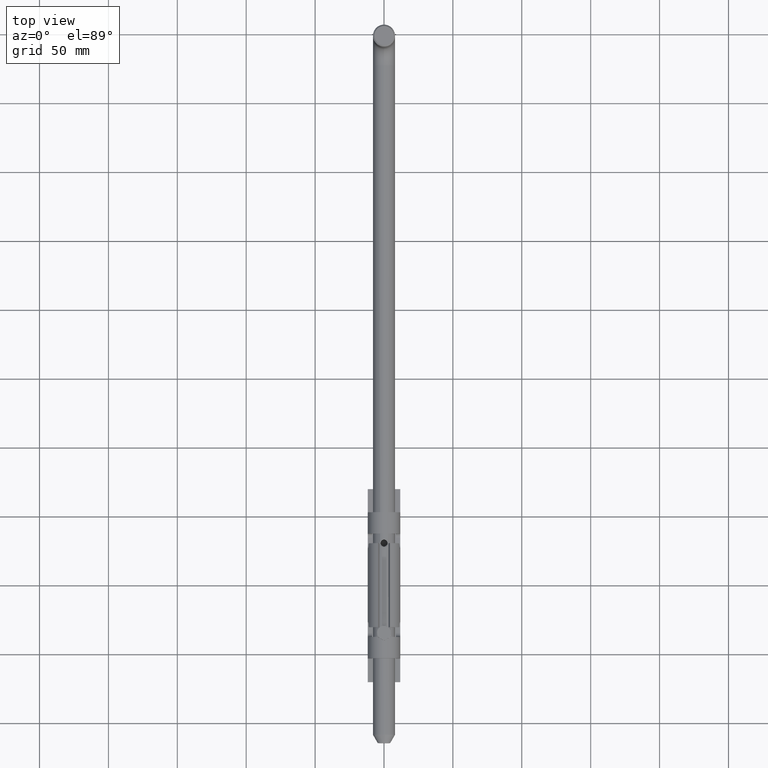
[diagram: clean part render]
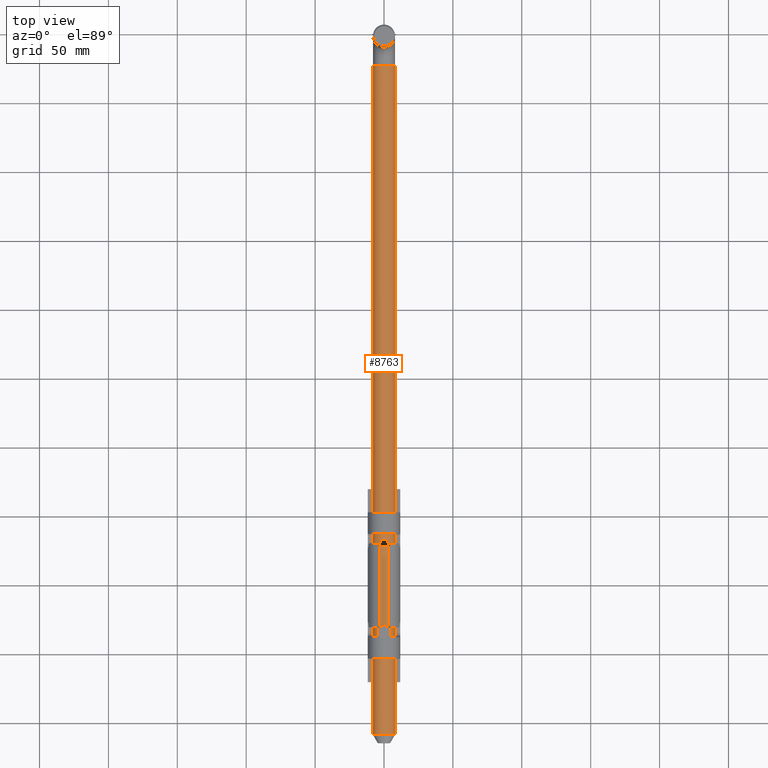
[diagram: same view with one face highlighted and labeled with its STEP entity id]
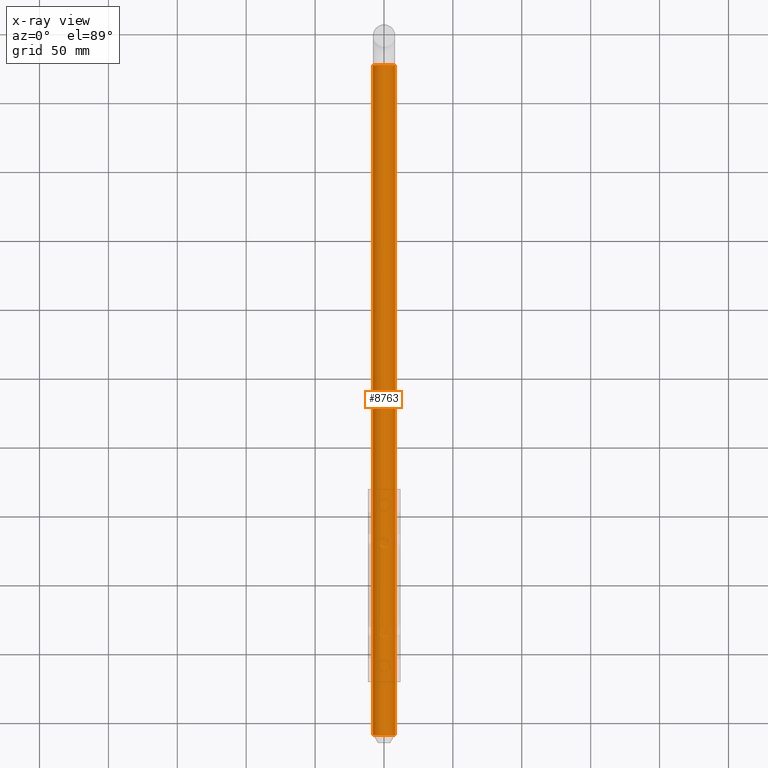
[diagram: x-ray of the same camera — body ghosted, the highlighted face saturated]
A machine part, top view. The second image highlights one B-rep face of the part: STEP entity #8763.
The next image is the same camera in x-ray: the body ghosted, the highlighted face saturated — about 0% of this face is hidden behind the body in this view.
In plain terms, the highlighted cylindrical surface (bore or boss wall) has radius 8 mm, axis along (0, 1, 0).
Its self-contained STEP definition (entity closure, byte-faithful):
#45 = CARTESIAN_POINT ( 'NONE',  ( 2.579731946667770615, 146.4487628875441203, 7.574308566198801884 ) ) ;
#48 = CARTESIAN_POINT ( 'NONE',  ( -2.860663060771149180, 80.74691612142908070, 7.471162677819355835 ) ) ;
#102 = CARTESIAN_POINT ( 'NONE',  ( 1.645595979026823974, 142.6200995483506233, 7.828921629050245024 ) ) ;
#106 = CARTESIAN_POINT ( 'NONE',  ( -0.09811955437530991975, 82.86324151486894607, 7.999435082093174998 ) ) ;
#164 = CARTESIAN_POINT ( 'NONE',  ( 2.729122876670807774, 143.8985876729329334, 7.520098957063800604 ) ) ;
#165 = CARTESIAN_POINT ( 'NONE',  ( -0.04957969960060630565, 82.86441596757860850, 7.999883182457191211 ) ) ;
#218 = CARTESIAN_POINT ( 'NONE',  ( 2.899062179789276605, 79.43872006947486852, 7.456234872756856369 ) ) ;
#271 = CARTESIAN_POINT ( 'NONE',  ( 0.4850676974145280984, 82.82749844496261460, 7.985864211049978678 ) ) ;
#335 = CARTESIAN_POINT ( 'NONE',  ( 2.956285570585469813, 80.19117064627518232, 7.433732281420296850 ) ) ;
#397 = CARTESIAN_POINT ( 'NONE',  ( 0.5810474846536937132, 77.19115270818728902, 7.978871086850420902 ) ) ;
#999 = CARTESIAN_POINT ( 'NONE',  ( -2.766018306126067028, 143.9843344430361185, 7.506711594330875315 ) ) ;
#1060 = CARTESIAN_POINT ( 'NONE',  ( -0.1223748728809830044, 147.8623648255054093, 7.999100708927392667 ) ) ;
#1117 = CARTESIAN_POINT ( 'NONE',  ( -1.820725851897174730, 142.7127060578982025, 7.795104764749101633 ) ) ;
#1179 = CARTESIAN_POINT ( 'NONE',  ( -0.4860229615115107538, 147.8273388792882486, 7.985802670577033524 ) ) ;
#1182 = CARTESIAN_POINT ( 'NONE',  ( -2.879684493372818732, 79.34498801449191774, 7.463768271074192384 ) ) ;
#1241 = CARTESIAN_POINT ( 'NONE',  ( -2.936724187545915576, 145.3792127852903207, 7.441593643298839211 ) ) ;
#1301 = CARTESIAN_POINT ( 'NONE',  ( -2.226895601848499329, 78.10666596831487141, 7.685090188721413362 ) ) ;
#1362 = CARTESIAN_POINT ( 'NONE',  ( 0.9573857739252036314, 147.7168165722684705, 7.944555705606221707 ) ) ;
#1425 = CARTESIAN_POINT ( 'NONE',  ( 2.728858957844051858, 146.1020261514495360, 7.520194730736317723 ) ) ;
#1486 = CARTESIAN_POINT ( 'NONE',  ( 0.5810474846536016758, 142.1911527081871895, 7.978871086850428007 ) ) ;
#1488 = CARTESIAN_POINT ( 'NONE',  ( 2.936346539791882204, 80.38182445177299940, 7.441743173537931355 ) ) ;
#1540 = CARTESIAN_POINT ( 'NONE',  ( 2.579843431047903479, 143.5512575132219411, 7.574274035396183713 ) ) ;
#1543 = CARTESIAN_POINT ( 'NONE',  ( 2.091119801620489493, 77.97497177721595563, 7.721866223606226320 ) ) ;
#1599 = CARTESIAN_POINT ( 'NONE',  ( -0.1950940110562549568, 82.85886636824241691, 7.997767774269979313 ) ) ;
#1658 = CARTESIAN_POINT ( 'NONE',  ( 0.04767639700330551095, 82.86444706501262658, 7.999894902909037597 ) ) ;
#1713 = CARTESIAN_POINT ( 'NONE',  ( 2.932450101916341367, 79.62428636702708218, 7.443174237899068402 ) ) ;
#1890 = CARTESIAN_POINT ( 'NONE',  ( -1.959434878635765131E-15, 77.13527780588972860, 8.000000000000000000 ) ) ;
#1943 = CARTESIAN_POINT ( 'NONE',  ( 1.316320254724494987, 77.42810719143598419, 7.893014070342060151 ) ) ;
#1945 = VERTEX_POINT ( 'NONE', #4917 ) ;
#2078 = EDGE_LOOP ( 'NONE', ( #9205 ) ) ;
#2180 = CARTESIAN_POINT ( 'NONE',  ( -1.959434878635765131E-15, 142.1352778058896718, 8.000000000000000000 ) ) ;
#2367 = CARTESIAN_POINT ( 'NONE',  ( -0.5820103971712080604, 147.8086600977559328, 7.978800905999885451 ) ) ;
#2426 = CARTESIAN_POINT ( 'NONE',  ( -0.09811955378544494344, 147.8632415148881023, 7.999435082100085914 ) ) ;
#2490 = CARTESIAN_POINT ( 'NONE',  ( -2.089916647959525697, 147.0261941483638566, 7.722191943003076098 ) ) ;
#2549 = CARTESIAN_POINT ( 'NONE',  ( 0.02212796934447593469, 147.8647299307403387, 8.000002819897066075 ) ) ;
#2602 = CARTESIAN_POINT ( 'NONE',  ( -0.5807929428112137415, 142.1911032768326493, 7.978889619338063177 ) ) ;
#2663 = CARTESIAN_POINT ( 'NONE',  ( 0.3874701286301368008, 147.8415812218673864, 7.991200090878218809 ) ) ;
#2666 = CARTESIAN_POINT ( 'NONE',  ( -1.807998787364401228, 82.27432787524483615, 7.794755511196370001 ) ) ;
#2782 = CARTESIAN_POINT ( 'NONE',  ( 2.879957927047264388, 144.3460586839861435, 7.463662806230339619 ) ) ;
#2785 = CARTESIAN_POINT ( 'NONE',  ( -2.898776271949216277, 79.43733520206396292, 7.456346030408205650 ) ) ;
#2845 = CARTESIAN_POINT ( 'NONE',  ( 0.1206234020291120229, 82.86243495075370902, 7.999127477920611184 ) ) ;
#2904 = CARTESIAN_POINT ( 'NONE',  ( 0.2905186933468555943, 147.8508566049731598, 7.994723190255935030 ) ) ;
#2906 = CARTESIAN_POINT ( 'NONE',  ( -0.2435110025524352129, 82.85537621129596175, 7.996439389232910422 ) ) ;
#2962 = CARTESIAN_POINT ( 'NONE',  ( 0.1935066965011738305, 82.85896859441521656, 7.997807000107952646 ) ) ;
#3017 = CARTESIAN_POINT ( 'NONE',  ( -0.9589318496046950191, 82.71628174820232005, 7.944358389409595489 ) ) ;
#3077 = CARTESIAN_POINT ( 'NONE',  ( 2.856055941613035554, 79.25403795121914641, 7.472876457236602654 ) ) ;
#3246 = CARTESIAN_POINT ( 'NONE',  ( 0.1960556857511699669, 77.13527680465706737, 8.000000000000000000 ) ) ;
#3790 = CARTESIAN_POINT ( 'NONE',  ( -0.04957969922522590528, 147.8644159675908725, 7.999883182459193165 ) ) ;
#3826 = FACE_BOUND ( 'NONE', #2078, .T. ) ;
#3849 = CARTESIAN_POINT ( 'NONE',  ( -2.349195199764496866, 143.2508027592531050, 7.648137152867542810 ) ) ;
#3908 = CARTESIAN_POINT ( 'NONE',  ( 0.04767639688067770720, 147.8644470650127687, 7.999894902909659322 ) ) ;
#3910 = CARTESIAN_POINT ( 'NONE',  ( -2.936959829102010922, 79.62202957720806751, 7.441501549076231292 ) ) ;
#3969 = CARTESIAN_POINT ( 'NONE',  ( -0.3899897201449729622, 142.1540618930754647, 7.992778414706481982 ) ) ;
#3972 = CARTESIAN_POINT ( 'NONE',  ( -0.7715961662913263241, 77.22814466077539919, 7.965000823910401984 ) ) ;
#4031 = CARTESIAN_POINT ( 'NONE',  ( 0.7738894093764860926, 147.7713735124096388, 7.964820566472353036 ) ) ;
#4034 = CARTESIAN_POINT ( 'NONE',  ( -0.9606626916078512268, 77.28431504790805207, 7.944143457926997165 ) ) ;
#4055 = FACE_BOUND ( 'NONE', #10458, .T. ) ;
#4087 = CARTESIAN_POINT ( 'NONE',  ( 2.856055941644598750, 144.2540379513867208, 7.472876457224677083 ) ) ;
#4100 = DIRECTION ( 'NONE',  ( 0.000000000000000000, 1.000000000000000000, 0.000000000000000000 ) ) ;
#4144 = CARTESIAN_POINT ( 'NONE',  ( 0.1935066962867307006, 147.8589685944153302, 7.997807000113136056 ) ) ;
#4147 = CARTESIAN_POINT ( 'NONE',  ( -2.349042890389418492, 81.74930753427450725, 7.648177558982946600 ) ) ;
#4206 = CARTESIAN_POINT ( 'NONE',  ( 1.954411451049205439, 147.1574661182276600, 7.758871341774501218 ) ) ;
#4208 = CARTESIAN_POINT ( 'NONE',  ( 1.314577624735941752, 82.57277330475093891, 7.893316067935380431 ) ) ;
#4268 = CARTESIAN_POINT ( 'NONE',  ( 2.860111142010328678, 80.74878847283237349, 7.471374486531547454 ) ) ;
#4321 = CARTESIAN_POINT ( 'NONE',  ( 2.090265437473426857, 82.02585627571323812, 7.722097538940053241 ) ) ;
#4330 = ORIENTED_EDGE ( 'NONE', *, *, #9630, .F. ) ;
#4381 = CARTESIAN_POINT ( 'NONE',  ( 1.806990639484525207, 82.27502631626109064, 7.794975902338183715 ) ) ;
#4437 = CARTESIAN_POINT ( 'NONE',  ( 0.1449178335197992828, 82.86127949864086872, 7.998687318649725597 ) ) ;
#4495 = CARTESIAN_POINT ( 'NONE',  ( 1.049190312648953682, 77.32011786990175040, 7.931411741912502755 ) ) ;
#4917 = CARTESIAN_POINT ( 'NONE',  ( 0.000000000000000000, 6.000000000000005329, -8.000000000000000000 ) ) ;
#5041 = CARTESIAN_POINT ( 'NONE',  ( -1.494242319986221368, 142.5000632854365676, 7.867426023665286650 ) ) ;
#5099 = CARTESIAN_POINT ( 'NONE',  ( -0.3885509646720398114, 147.8414321840737955, 7.991144486503629629 ) ) ;
#5161 = CARTESIAN_POINT ( 'NONE',  ( -0.02412202006160628007, 147.8647141316588716, 7.999997055845486038 ) ) ;
#5222 = CARTESIAN_POINT ( 'NONE',  ( -2.226895601782881595, 143.1066659682379623, 7.685090188739184036 ) ) ;
#5279 = CARTESIAN_POINT ( 'NONE',  ( -2.898776271949321970, 144.4373352020639345, 7.456346030408163905 ) ) ;
#5281 = CARTESIAN_POINT ( 'NONE',  ( -2.728896607379092565, 81.10193863430455963, 7.520181068713363892 ) ) ;
#5342 = CARTESIAN_POINT ( 'NONE',  ( 0.8630930836904846526, 142.2600785485929293, 7.953305622751186910 ) ) ;
#5461 = CARTESIAN_POINT ( 'NONE',  ( 0.6762152895658968266, 142.2096395668948787, 7.971940656083670085 ) ) ;
#5523 = CARTESIAN_POINT ( 'NONE',  ( 1.805837521681020075, 142.7241409155415113, 7.795239744014337724 ) ) ;
#5526 = CARTESIAN_POINT ( 'NONE',  ( -1.820725851765711889, 77.71270605774449791, 7.795104764784706930 ) ) ;
#5582 = CARTESIAN_POINT ( 'NONE',  ( 2.090265437472246912, 147.0258562757142897, 7.722097538940372097 ) ) ;
#5586 = CARTESIAN_POINT ( 'NONE',  ( 2.956399506794769039, 79.90529108742954634, 7.433686969323779259 ) ) ;
#5642 = CARTESIAN_POINT ( 'NONE',  ( -0.1466145860350495655, 82.86119867307048992, 7.998656397368358206 ) ) ;
#5698 = CARTESIAN_POINT ( 'NONE',  ( 1.646596097010512905, 82.37925082413774192, 7.828711343082573215 ) ) ;
#5755 = CARTESIAN_POINT ( 'NONE',  ( -0.1223748735244468838, 82.86236482548451932, 7.999100708917548097 ) ) ;
#5789 = AXIS2_PLACEMENT_3D ( 'NONE', #6865, #4100, #10904 ) ;
#5813 = CARTESIAN_POINT ( 'NONE',  ( -0.4860229622117281933, 82.82733887916555204, 7.985802670525957936 ) ) ;
#5988 = CARTESIAN_POINT ( 'NONE',  ( 0.8630930836913182080, 77.26007854859321355, 7.953305622751098092 ) ) ;
#6396 = CYLINDRICAL_SURFACE ( 'NONE', #5789, 8.000000000000000000 ) ;
#6423 = CARTESIAN_POINT ( 'NONE',  ( -2.855707877844880116, 144.2527924565567048, 7.473009400550298054 ) ) ;
#6482 = CARTESIAN_POINT ( 'NONE',  ( -2.827072700079086065, 144.1620876108663083, 7.483826557882507835 ) ) ;
#6541 = CARTESIAN_POINT ( 'NONE',  ( -2.956361118489615247, 144.9982315451693751, 7.433702236240218753 ) ) ;
#6605 = CARTESIAN_POINT ( 'NONE',  ( -2.728697388001241730, 143.8975982344948079, 7.520253357747676226 ) ) ;
#6663 = CARTESIAN_POINT ( 'NONE',  ( -2.349042890496222835, 146.7493075342025861, 7.648177558948495935 ) ) ;
#6666 = CARTESIAN_POINT ( 'NONE',  ( -2.654604071275526778, 81.27469633336991706, 7.547140080454459721 ) ) ;
#6728 = CARTESIAN_POINT ( 'NONE',  ( 0.1960556860339393304, 142.1352768046567121, 8.000000000000000000 ) ) ;
#6731 = CARTESIAN_POINT ( 'NONE',  ( -2.349195199606536999, 78.25080275899732385, 7.648137152918506487 ) ) ;
#6791 = CARTESIAN_POINT ( 'NONE',  ( 1.955601196518119034, 142.8435676479837184, 7.758565336283327341 ) ) ;
#6794 = CARTESIAN_POINT ( 'NONE',  ( -2.956204773416791109, 79.80908794378682103, 7.433764414207492344 ) ) ;
#6850 = CARTESIAN_POINT ( 'NONE',  ( 0.1449178333062877966, 147.8612794986409824, 7.998687318653593614 ) ) ;
#6865 = CARTESIAN_POINT ( 'NONE',  ( 0.000000000000000000, 0.000000000000000000, 0.000000000000000000 ) ) ;
#6903 = CARTESIAN_POINT ( 'NONE',  ( 2.766442738076533736, 143.9854202128606460, 7.506555187480705271 ) ) ;
#6905 = CARTESIAN_POINT ( 'NONE',  ( -2.091505685154237071, 77.97534599812475165, 7.721761714075844552 ) ) ;
#6968 = CARTESIAN_POINT ( 'NONE',  ( 2.827404402635294023, 144.1631391955810102, 7.483701246305771271 ) ) ;
#6970 = CARTESIAN_POINT ( 'NONE',  ( 2.766442738045807204, 78.98542021283087422, 7.506555187491856351 ) ) ;
#7028 = CARTESIAN_POINT ( 'NONE',  ( -0.02412199700027135851, 82.86471413166010791, 7.999997055848362848 ) ) ;
#7083 = CARTESIAN_POINT ( 'NONE',  ( -1.315169873409018919, 82.57244529255812893, 7.893206491385246437 ) ) ;
#7143 = CARTESIAN_POINT ( 'NONE',  ( 2.579731946345301896, 81.44876288802140607, 7.574308566315801627 ) ) ;
#7200 = CARTESIAN_POINT ( 'NONE',  ( 0.07199611154085100440, 82.86387330973161625, 7.999676028435338537 ) ) ;
#7803 = CARTESIAN_POINT ( 'NONE',  ( -2.728896607379186268, 146.1019386343046165, 7.520181068713330141 ) ) ;
#7864 = CARTESIAN_POINT ( 'NONE',  ( -1.485969992628461744, 147.4836690710341713, 7.862503817192886046 ) ) ;
#7927 = CARTESIAN_POINT ( 'NONE',  ( -0.9606626916096823177, 142.2843150478814778, 7.944143457926735152 ) ) ;
#7986 = CARTESIAN_POINT ( 'NONE',  ( -1.646984389888789702, 147.3789984732233336, 7.828629664217273465 ) ) ;
#8013 = EDGE_LOOP ( 'NONE', ( #13901 ) ) ;
#8049 = CARTESIAN_POINT ( 'NONE',  ( -2.563863612939420999, 143.5614657241548571, 7.578873489504532657 ) ) ;
#8109 = CARTESIAN_POINT ( 'NONE',  ( 2.898228840901290848, 145.5653064623023170, 7.456558830034667018 ) ) ;
#8112 = CARTESIAN_POINT ( 'NONE',  ( -1.959434878635765131E-15, 77.13527780588972860, 8.000000000000000000 ) ) ;
#8165 = CARTESIAN_POINT ( 'NONE',  ( 2.936346539761735208, 145.3818244519265761, 7.441743173549648205 ) ) ;
#8168 = CARTESIAN_POINT ( 'NONE',  ( -2.455967399233760950, 81.59467877881375841, 7.613686632236774443 ) ) ;
#8231 = CARTESIAN_POINT ( 'NONE',  ( 1.646596097011423954, 147.3792508241371593, 7.828711343082382257 ) ) ;
#8234 = CARTESIAN_POINT ( 'NONE',  ( -2.956517463562215120, 80.18737514655185805, 7.433640058273034867 ) ) ;
#8290 = CARTESIAN_POINT ( 'NONE',  ( 1.806990639281948585, 147.2750263164210764, 7.794975902380771871 ) ) ;
#8292 = CARTESIAN_POINT ( 'NONE',  ( 0.09631582607839649091, 82.86329955445060591, 7.999457153961638589 ) ) ;
#8349 = CARTESIAN_POINT ( 'NONE',  ( 2.956399506794951559, 144.9052910874462725, 7.433686969323707316 ) ) ;
#8351 = CARTESIAN_POINT ( 'NONE',  ( 2.579843431169672296, 78.55125751334040274, 7.574274035351987067 ) ) ;
#8403 = CARTESIAN_POINT ( 'NONE',  ( 0.7738894082702633126, 82.77137351257037778, 7.964820566552821113 ) ) ;
#8426 = DIRECTION ( 'NONE',  ( 0.000000000000000000, 0.000000000000000000, -1.000000000000000000 ) ) ;
#8458 = CARTESIAN_POINT ( 'NONE',  ( -0.2918576563064751439, 82.85072820223111023, 7.994674421666918995 ) ) ;
#8512 = CARTESIAN_POINT ( 'NONE',  ( 2.898228840901105219, 80.56530646230268644, 7.456558830034738961 ) ) ;
#8699 = CARTESIAN_POINT ( 'NONE',  ( 0.9564280977369364889, 77.28768685068725119, 7.943176902831349473 ) ) ;
#8763 = ADVANCED_FACE ( 'NONE', ( #4055, #3826, #16706, #16069 ), #6396, .T. ) ;
#8800 = DIRECTION ( 'NONE',  ( 0.000000000000000000, 0.000000000000000000, 1.000000000000000000 ) ) ;
#9191 = CARTESIAN_POINT ( 'NONE',  ( -2.455967399233855541, 146.5946787788138295, 7.613686632236744245 ) ) ;
#9205 = ORIENTED_EDGE ( 'NONE', *, *, #16695, .T. ) ;
#9247 = CARTESIAN_POINT ( 'NONE',  ( -2.091505685154312566, 142.9753459981247090, 7.721761714075823235 ) ) ;
#9312 = CARTESIAN_POINT ( 'NONE',  ( -2.936959829085268758, 144.6220295770444011, 7.441501549082738087 ) ) ;
#9372 = CARTESIAN_POINT ( 'NONE',  ( -0.9589318503797522597, 147.7162817479169519, 7.944358389298305845 ) ) ;
#9375 = CARTESIAN_POINT ( 'NONE',  ( -2.798437522271544076, 79.07138276501650864, 7.494643715230488112 ) ) ;
#9429 = CARTESIAN_POINT ( 'NONE',  ( -2.956517463562604586, 145.1873751468813509, 7.433640058272879436 ) ) ;
#9430 = CARTESIAN_POINT ( 'NONE',  ( -1.954742100462597998, 82.15711088065556567, 7.758775278315038548 ) ) ;
#9443 = VERTEX_POINT ( 'NONE', #15904 ) ;
#9491 = CARTESIAN_POINT ( 'NONE',  ( 2.899062179789396065, 144.4387200694748117, 7.456234872756809295 ) ) ;
#9493 = CARTESIAN_POINT ( 'NONE',  ( -2.654055551652477973, 78.72412581715445867, 7.547336884617238617 ) ) ;
#9549 = CARTESIAN_POINT ( 'NONE',  ( 0.09631582588362348762, 147.8632995544507480, 7.999457153963875911 ) ) ;
#9610 = CARTESIAN_POINT ( 'NONE',  ( 1.486201554740899322, 147.4834753318532421, 7.862446783783992643 ) ) ;
#9613 = CARTESIAN_POINT ( 'NONE',  ( -0.1956738863669538475, 77.13527880517260371, 8.000000000000000000 ) ) ;
#9630 = EDGE_CURVE ( 'NONE', #10302, #10302, #13259, .T. ) ;
#9667 = CARTESIAN_POINT ( 'NONE',  ( 0.9564280968306031472, 142.2876868504053505, 7.943176902929713457 ) ) ;
#9670 = CARTESIAN_POINT ( 'NONE',  ( 0.3874701283502260951, 82.84158122186724427, 7.991200090888356478 ) ) ;
#9727 = CARTESIAN_POINT ( 'NONE',  ( 1.314577624221257901, 147.5727733049857022, 7.893316068009157860 ) ) ;
#9730 = CARTESIAN_POINT ( 'NONE',  ( 2.362157011271429408, 78.23778003508860479, 7.648467998402014523 ) ) ;
#9787 = CARTESIAN_POINT ( 'NONE',  ( -0.5820103971711797497, 82.80866009775583336, 7.978800905999889004 ) ) ;
#9845 = CARTESIAN_POINT ( 'NONE',  ( -1.646984389888727307, 82.37899847322324831, 7.828629664217285899 ) ) ;
#9902 = CARTESIAN_POINT ( 'NONE',  ( 2.951628703255982700, 79.81242881341734119, 7.435589709906603062 ) ) ;
#9991 = CARTESIAN_POINT ( 'NONE',  ( 0.000000000000000000, 6.000000000000005329, 0.000000000000000000 ) ) ;
#10023 = CARTESIAN_POINT ( 'NONE',  ( 1.485354436376779885, 77.51605818119006130, 7.862603514085279244 ) ) ;
#10081 = CARTESIAN_POINT ( 'NONE',  ( 0.7697580696456999272, 77.23247024649916170, 7.963434342670846711 ) ) ;
#10302 = VERTEX_POINT ( 'NONE', #17155 ) ;
#10458 = EDGE_LOOP ( 'NONE', ( #15267 ) ) ;
#10576 = CARTESIAN_POINT ( 'NONE',  ( -0.7739852684906025626, 147.7713025346912445, 7.964797376845590193 ) ) ;
#10636 = CARTESIAN_POINT ( 'NONE',  ( -2.225091195949306488, 146.8952774157039869, 7.685608607557727900 ) ) ;
#10702 = CARTESIAN_POINT ( 'NONE',  ( -2.654604071225918460, 146.2746963335430621, 7.547140080472463097 ) ) ;
#10728 = VERTEX_POINT ( 'NONE', #2180 ) ;
#10758 = CARTESIAN_POINT ( 'NONE',  ( -0.0009970253585651733374, 147.8647220311995909, 7.999999937871276501 ) ) ;
#10824 = CARTESIAN_POINT ( 'NONE',  ( -1.807998787149117437, 147.2743278754124958, 7.794755511241661772 ) ) ;
#10887 = CARTESIAN_POINT ( 'NONE',  ( 2.091119801620914487, 142.9749717772162683, 7.721866223606111745 ) ) ;
#10890 = CARTESIAN_POINT ( 'NONE',  ( -2.728697388001134705, 78.89759823449482212, 7.520253357747715306 ) ) ;
#10904 = DIRECTION ( 'NONE',  ( 0.000000000000000000, 0.000000000000000000, 1.000000000000000000 ) ) ;
#10943 = CARTESIAN_POINT ( 'NONE',  ( 2.956285570585440947, 145.1911706462413179, 7.433732281420308396 ) ) ;
#11004 = CARTESIAN_POINT ( 'NONE',  ( 2.860111142040846932, 145.7487884726780578, 7.471374486519685831 ) ) ;
#11064 = CARTESIAN_POINT ( 'NONE',  ( -1.959434878635765131E-15, 142.1352778058896718, 8.000000000000000000 ) ) ;
#11067 = CARTESIAN_POINT ( 'NONE',  ( -0.3885509638145548950, 82.84143218410140719, 7.991144486534932589 ) ) ;
#11122 = CARTESIAN_POINT ( 'NONE',  ( 2.362157011826505393, 143.2377800356813680, 7.648467998251681443 ) ) ;
#11124 = CARTESIAN_POINT ( 'NONE',  ( -1.137050861506856858, 82.64436352038022449, 7.918782440397420963 ) ) ;
#11145 = B_SPLINE_CURVE_WITH_KNOTS ( 'NONE', 3,
 ( #8112, #9613, #13752, #14901, #3972, #4034, #16452, #12252, #5526, #6905, #1301, #6731, #16513, #17584, #9493, #10890, #17709, #9375, #13640, #13573, #1182, #2785, #3910, #6794, #15022, #8234, #13513, #14960, #48, #16396, #5281, #6666, #12375, #8168, #4147, #16271, #16332, #9430, #2666, #9845, #13930, #7083, #11124, #3017, #14036, #9787, #5813, #11067, #8458, #2906, #1599, #5642, #5755, #106, #15428, #165, #7028, #11180, #13979, #1658, #7200, #8292, #2845, #4437, #2962, #12434, #12602, #9670, #271, #12488, #8403, #16682, #12542, #4208, #11238, #5698, #4381, #16627, #4321, #15371, #7143, #15310, #16738, #4268, #8512, #1488, #335, #13813, #5586, #9902, #13870, #1713, #15258, #218, #11294, #3077, #12662, #15203, #6970, #16571, #8351, #9730, #1543, #11471, #11580, #16971, #10023, #1943, #12718, #4495, #8699, #5988, #10081, #15605, #397, #15483, #3246, #1890 ),
 .UNSPECIFIED., .T., .F.,
 ( 4, 3, 3, 3, 3, 3, 3, 3, 3, 3, 3, 3, 3, 3, 3, 3, 3, 3, 3, 3, 3, 3, 3, 3, 3, 3, 3, 3, 3, 3, 3, 3, 3, 3, 3, 3, 3, 3, 3, 4 ),
 ( 0.000000000000000000, 0.02564102564102564014, 0.05128205128205128027, 0.07692307692307692735, 0.1025641025641025605, 0.1282051282051281937, 0.1538461538461538547, 0.1794871794871794879, 0.2051282051282051211, 0.2307692307692307820, 0.2564102564102563875, 0.2820512820512820484, 0.3076923076923077094, 0.3333333333333333148, 0.3589743589743589758, 0.3846153846153846367, 0.4102564102564102422, 0.4358974358974359031, 0.4615384615384615641, 0.4871794871794871695, 0.5128205128205127750, 0.5384615384615384359, 0.5641025641025640969, 0.5897435897435897578, 0.6153846153846154188, 0.6410256410256410797, 0.6666666666666666297, 0.6923076923076922906, 0.7179487179487179516, 0.7435897435897436125, 0.7692307692307692735, 0.7948717948717948234, 0.8205128205128204844, 0.8461538461538461453, 0.8717948717948718063, 0.8974358974358974672, 0.9230769230769231282, 0.9487179487179486781, 0.9743589743589743390, 1.000000000000000000 ),
 .UNSPECIFIED. ) ;
#11180 = CARTESIAN_POINT ( 'NONE',  ( -0.0009970253585509624827, 82.86472203119950564, 7.999999937871276501 ) ) ;
#11238 = CARTESIAN_POINT ( 'NONE',  ( 1.486201554536500380, 82.48347533201440740, 7.862446783826963603 ) ) ;
#11294 = CARTESIAN_POINT ( 'NONE',  ( 2.879957927048364841, 79.34605868397655115, 7.463662806229912405 ) ) ;
#11317 = DIRECTION ( 'NONE',  ( 0.000000000000000000, -1.000000000000000000, 0.000000000000000000 ) ) ;
#11471 = CARTESIAN_POINT ( 'NONE',  ( 1.955601196795019536, 77.84356764827964525, 7.758565336208332219 ) ) ;
#11580 = CARTESIAN_POINT ( 'NONE',  ( 1.805837521676784796, 77.72414091551129900, 7.795239744015228567 ) ) ;
#11956 = CARTESIAN_POINT ( 'NONE',  ( -2.798437522313292458, 144.0713827651758834, 7.494643715214718505 ) ) ;
#12014 = CARTESIAN_POINT ( 'NONE',  ( -0.07384962650533541395, 147.8638287412395016, 7.999659132279639984 ) ) ;
#12045 = DIRECTION ( 'NONE',  ( 0.000000000000000000, 1.000000000000000000, 0.000000000000000000 ) ) ;
#12073 = CARTESIAN_POINT ( 'NONE',  ( -1.954742099969744906, 147.1571108810236979, 7.758775278448425183 ) ) ;
#12136 = CARTESIAN_POINT ( 'NONE',  ( -0.2918576563064751439, 147.8507282022312097, 7.994674421666918995 ) ) ;
#12194 = CARTESIAN_POINT ( 'NONE',  ( -1.959434878635765131E-15, 142.1352778058896718, 8.000000000000000000 ) ) ;
#12211 = EDGE_CURVE ( 'NONE', #9443, #9443, #11145, .T. ) ;
#12249 = CARTESIAN_POINT ( 'NONE',  ( 0.4850676968534125000, 147.8274984450442844, 7.985864211090798470 ) ) ;
#12252 = CARTESIAN_POINT ( 'NONE',  ( -1.494242319989735890, 77.50006328538351852, 7.867426023664783941 ) ) ;
#12372 = CARTESIAN_POINT ( 'NONE',  ( 0.1206234018160663446, 147.8624349507537943, 7.999127477923823726 ) ) ;
#12375 = CARTESIAN_POINT ( 'NONE',  ( -2.562891908078103409, 81.44005002335299537, 7.579195705490603174 ) ) ;
#12432 = CARTESIAN_POINT ( 'NONE',  ( 2.956361528058447874, 145.0005842737112971, 7.433702073355907380 ) ) ;
#12434 = CARTESIAN_POINT ( 'NONE',  ( 0.2420429758493775063, 82.85549429652594711, 7.996484739939569764 ) ) ;
#12485 = CARTESIAN_POINT ( 'NONE',  ( 1.049190313373183470, 142.3201178702762775, 7.931411741808391369 ) ) ;
#12488 = CARTESIAN_POINT ( 'NONE',  ( 0.5813416010331065031, 82.80879013416520706, 7.978849662884258898 ) ) ;
#12542 = CARTESIAN_POINT ( 'NONE',  ( 1.135981699070867545, 82.64479493862806692, 7.918935886808029956 ) ) ;
#12602 = CARTESIAN_POINT ( 'NONE',  ( 0.2905186933496603507, 82.85085660497304616, 7.994723190255832002 ) ) ;
#12662 = CARTESIAN_POINT ( 'NONE',  ( 2.827404402635061320, 79.16313919558037071, 7.483701246305859200 ) ) ;
#12718 = CARTESIAN_POINT ( 'NONE',  ( 1.138233626674134191, 77.35611431041317587, 7.918612518055688554 ) ) ;
#13259 = CIRCLE ( 'NONE', #15912, 8.000000000000000000 ) ;
#13301 = CARTESIAN_POINT ( 'NONE',  ( 0.000000000000000000, 492.0000000000000000, 0.000000000000000000 ) ) ;
#13324 = CARTESIAN_POINT ( 'NONE',  ( -1.315169872634031956, 147.5724452928436961, 7.893206491496525423 ) ) ;
#13391 = CARTESIAN_POINT ( 'NONE',  ( -1.138522567735195334, 142.3562311270665077, 7.918570979839586244 ) ) ;
#13416 = AXIS2_PLACEMENT_3D ( 'NONE', #9991, #11317, #8426 ) ;
#13451 = CARTESIAN_POINT ( 'NONE',  ( -2.879684493381348798, 144.3449880145736870, 7.463768271070876814 ) ) ;
#13511 = CARTESIAN_POINT ( 'NONE',  ( -0.2435110021236927547, 147.8553762113099310, 7.996439389248562790 ) ) ;
#13513 = CARTESIAN_POINT ( 'NONE',  ( -2.936724187529200947, 80.37921278534328451, 7.441593643305338013 ) ) ;
#13570 = CARTESIAN_POINT ( 'NONE',  ( 0.5813416010277704382, 147.8087901341660597, 7.978849662884649696 ) ) ;
#13573 = CARTESIAN_POINT ( 'NONE',  ( -2.855707877886414892, 79.25279245671613637, 7.473009400534608382 ) ) ;
#13637 = CARTESIAN_POINT ( 'NONE',  ( 1.316320253273482566, 142.4281071906856084, 7.893014070550648853 ) ) ;
#13640 = CARTESIAN_POINT ( 'NONE',  ( -2.827072700078979484, 79.16208761086632251, 7.483826557882547803 ) ) ;
#13696 = CARTESIAN_POINT ( 'NONE',  ( 1.135981699073230766, 147.6447949386270864, 7.918935886807689783 ) ) ;
#13749 = CARTESIAN_POINT ( 'NONE',  ( 2.361973410318329414, 146.7626365906875208, 7.648549933272112966 ) ) ;
#13752 = CARTESIAN_POINT ( 'NONE',  ( -0.3899897193310443710, 77.15406189289006988, 7.992778414765727923 ) ) ;
#13804 = CIRCLE ( 'NONE', #13416, 8.000000000000000000 ) ;
#13809 = CARTESIAN_POINT ( 'NONE',  ( 2.951628703256165220, 144.8124288134398228, 7.435589709906530231 ) ) ;
#13813 = CARTESIAN_POINT ( 'NONE',  ( 2.956361528058335963, 80.00058427371142500, 7.433702073355951789 ) ) ;
#13870 = CARTESIAN_POINT ( 'NONE',  ( 2.942039402586162034, 79.71835759022221168, 7.439381973902835732 ) ) ;
#13901 = ORIENTED_EDGE ( 'NONE', *, *, #14038, .F. ) ;
#13930 = CARTESIAN_POINT ( 'NONE',  ( -1.485969992413053609, 82.48366907120164626, 7.862503817238200909 ) ) ;
#13979 = CARTESIAN_POINT ( 'NONE',  ( 0.02212794628316943138, 82.86472993073890336, 8.000002819894190154 ) ) ;
#14036 = CARTESIAN_POINT ( 'NONE',  ( -0.7739852670900828624, 82.77130253493641021, 7.964797376947752028 ) ) ;
#14038 = EDGE_CURVE ( 'NONE', #1945, #1945, #13804, .T. ) ;
#14656 = CARTESIAN_POINT ( 'NONE',  ( -2.654055551751591135, 143.7241258174121583, 7.547336884581278049 ) ) ;
#14717 = CARTESIAN_POINT ( 'NONE',  ( -0.1950940104128912334, 147.8588663682632784, 7.997767774285673426 ) ) ;
#14777 = CARTESIAN_POINT ( 'NONE',  ( -0.7715961654774544654, 142.2281446605898338, 7.965000823969644372 ) ) ;
#14833 = CARTESIAN_POINT ( 'NONE',  ( -0.1956738869423134686, 142.1352788051728453, 8.000000000000000000 ) ) ;
#14898 = CARTESIAN_POINT ( 'NONE',  ( -2.956204773416625464, 144.8090879434574276, 7.433764414207558069 ) ) ;
#14901 = CARTESIAN_POINT ( 'NONE',  ( -0.5807929428111853198, 77.19110327683273454, 7.978889619338064954 ) ) ;
#14958 = CARTESIAN_POINT ( 'NONE',  ( 0.7697580705503661580, 142.2324702467805082, 7.963434342572659475 ) ) ;
#14960 = CARTESIAN_POINT ( 'NONE',  ( -2.898693624150174841, 80.56306445338617550, 7.456378160562346480 ) ) ;
#15022 = CARTESIAN_POINT ( 'NONE',  ( -2.956361118489503337, 79.99823154516934665, 7.433702236240264050 ) ) ;
#15082 = CARTESIAN_POINT ( 'NONE',  ( 0.3907118748290112631, 142.1541789907717828, 7.992731948383942076 ) ) ;
#15144 = CARTESIAN_POINT ( 'NONE',  ( 1.485354436372627873, 142.5160581811597353, 7.862603514086153211 ) ) ;
#15201 = CARTESIAN_POINT ( 'NONE',  ( 2.932450101916383556, 144.6242863670048280, 7.443174237899053303 ) ) ;
#15203 = CARTESIAN_POINT ( 'NONE',  ( 2.798752863657087531, 79.07224043994158080, 7.494526035375115747 ) ) ;
#15258 = CARTESIAN_POINT ( 'NONE',  ( 2.918166432530188370, 79.53138145497320011, 7.448806939283800332 ) ) ;
#15267 = ORIENTED_EDGE ( 'NONE', *, *, #12211, .T. ) ;
#15310 = CARTESIAN_POINT ( 'NONE',  ( 2.728858957843431021, 81.10202615145027494, 7.520194730736542432 ) ) ;
#15371 = CARTESIAN_POINT ( 'NONE',  ( 2.361973409668479462, 81.76263659120886018, 7.648549933447974070 ) ) ;
#15428 = CARTESIAN_POINT ( 'NONE',  ( -0.07384962698795810576, 82.86382874122378439, 7.999659132275183104 ) ) ;
#15483 = CARTESIAN_POINT ( 'NONE',  ( 0.3907118745564442386, 77.15417899071890417, 7.992731948403792863 ) ) ;
#15605 = CARTESIAN_POINT ( 'NONE',  ( 0.6762152897023184783, 77.20963956692148145, 7.971940656073735809 ) ) ;
#15904 = CARTESIAN_POINT ( 'NONE',  ( -1.959434878635765131E-15, 77.13527780588972860, 8.000000000000000000 ) ) ;
#15912 = AXIS2_PLACEMENT_3D ( 'NONE', #13301, #12045, #8800 ) ;
#16032 = CARTESIAN_POINT ( 'NONE',  ( -2.898693624150280979, 145.5630644533861755, 7.456378160562306512 ) ) ;
#16054 = EDGE_LOOP ( 'NONE', ( #4330 ) ) ;
#16069 = FACE_OUTER_BOUND ( 'NONE', #16054, .T. ) ;
#16090 = CARTESIAN_POINT ( 'NONE',  ( -2.803189143532454075, 145.9291809350661708, 7.493222056954197186 ) ) ;
#16210 = CARTESIAN_POINT ( 'NONE',  ( -2.562891907971488248, 146.4400500234250444, 7.579195705524992555 ) ) ;
#16269 = CARTESIAN_POINT ( 'NONE',  ( -2.456529406351958933, 143.4061342417039668, 7.613505321186037733 ) ) ;
#16271 = CARTESIAN_POINT ( 'NONE',  ( -2.225091195456302628, 81.89527741607196276, 7.685608607691154504 ) ) ;
#16328 = CARTESIAN_POINT ( 'NONE',  ( 2.803422463432192036, 145.9286577834022580, 7.493137813005075643 ) ) ;
#16332 = CARTESIAN_POINT ( 'NONE',  ( -2.089916647959450202, 82.02619414836375711, 7.722191943003096526 ) ) ;
#16392 = CARTESIAN_POINT ( 'NONE',  ( 2.918166432531527743, 144.5313814549634799, 7.448806939283278972 ) ) ;
#16396 = CARTESIAN_POINT ( 'NONE',  ( -2.803189143482658352, 80.92918093523920220, 7.493222056972268064 ) ) ;
#16450 = CARTESIAN_POINT ( 'NONE',  ( 0.2420429757052149911, 147.8554942965260466, 7.996484739944793141 ) ) ;
#16452 = CARTESIAN_POINT ( 'NONE',  ( -1.138522567735146040, 77.35623112706655036, 7.918570979839593349 ) ) ;
#16510 = CARTESIAN_POINT ( 'NONE',  ( 1.138233626673283094, 142.3561143104126927, 7.918612518055810234 ) ) ;
#16513 = CARTESIAN_POINT ( 'NONE',  ( -2.456529406351864342, 78.40613424170400947, 7.613505321186067043 ) ) ;
#16568 = CARTESIAN_POINT ( 'NONE',  ( 2.798752863625989296, 144.0722404397753280, 7.494526035386865459 ) ) ;
#16571 = CARTESIAN_POINT ( 'NONE',  ( 2.729122876670580400, 78.89858767293279129, 7.520098957063882317 ) ) ;
#16627 = CARTESIAN_POINT ( 'NONE',  ( 1.954411451375900777, 82.15746611796542709, 7.758871341686091050 ) ) ;
#16682 = CARTESIAN_POINT ( 'NONE',  ( 0.9573857734057933389, 82.71681657250520914, 7.944555705680679480 ) ) ;
#16695 = EDGE_CURVE ( 'NONE', #10728, #10728, #17226, .T. ) ;
#16706 = FACE_OUTER_BOUND ( 'NONE', #8013, .T. ) ;
#16738 = CARTESIAN_POINT ( 'NONE',  ( 2.803422463592495806, 80.92865778316470937, 7.493137812946913279 ) ) ;
#16971 = CARTESIAN_POINT ( 'NONE',  ( 1.645595979026782230, 77.62009954835068015, 7.828921629050253905 ) ) ;
#17155 = CARTESIAN_POINT ( 'NONE',  ( 0.000000000000000000, 492.0000000000000000, 8.000000000000000000 ) ) ;
#17226 = B_SPLINE_CURVE_WITH_KNOTS ( 'NONE', 3,
 ( #12194, #14833, #3969, #2602, #14777, #7927, #13391, #5041, #1117, #9247, #5222, #3849, #16269, #8049, #14656, #6605, #999, #11956, #6482, #6423, #13451, #5279, #9312, #14898, #6541, #9429, #1241, #16032, #17399, #16090, #7803, #10702, #16210, #9191, #6663, #10636, #2490, #12073, #10824, #7986, #7864, #13324, #17582, #9372, #10576, #2367, #1179, #5099, #12136, #13511, #14717, #17467, #1060, #2426, #12014, #3790, #5161, #10758, #2549, #3908, #17770, #9549, #12372, #6850, #4144, #16450, #2904, #2663, #12249, #13570, #4031, #1362, #13696, #9727, #9610, #8231, #8290, #4206, #5582, #13749, #45, #1425, #16328, #11004, #8109, #8165, #10943, #12432, #8349, #13809, #17707, #15201, #16392, #9491, #2782, #4087, #6968, #16568, #6903, #164, #1540, #11122, #10887, #6791, #5523, #102, #15144, #13637, #16510, #12485, #9667, #5342, #14958, #5461, #1486, #15082, #6728, #11064 ),
 .UNSPECIFIED., .T., .F.,
 ( 4, 3, 3, 3, 3, 3, 3, 3, 3, 3, 3, 3, 3, 3, 3, 3, 3, 3, 3, 3, 3, 3, 3, 3, 3, 3, 3, 3, 3, 3, 3, 3, 3, 3, 3, 3, 3, 3, 3, 4 ),
 ( 0.000000000000000000, 0.02564102564102564014, 0.05128205128205128027, 0.07692307692307692735, 0.1025641025641025605, 0.1282051282051281937, 0.1538461538461538547, 0.1794871794871794879, 0.2051282051282051211, 0.2307692307692307820, 0.2564102564102563875, 0.2820512820512820484, 0.3076923076923077094, 0.3333333333333333148, 0.3589743589743589758, 0.3846153846153846367, 0.4102564102564102422, 0.4358974358974359031, 0.4615384615384615641, 0.4871794871794871695, 0.5128205128205127750, 0.5384615384615384359, 0.5641025641025640969, 0.5897435897435897578, 0.6153846153846154188, 0.6410256410256410797, 0.6666666666666666297, 0.6923076923076922906, 0.7179487179487179516, 0.7435897435897436125, 0.7692307692307692735, 0.7948717948717948234, 0.8205128205128204844, 0.8461538461538461453, 0.8717948717948718063, 0.8974358974358974672, 0.9230769230769231282, 0.9487179487179486781, 0.9743589743589743390, 1.000000000000000000 ),
 .UNSPECIFIED. ) ;
#17399 = CARTESIAN_POINT ( 'NONE',  ( -2.860663060754645937, 145.7469161214820588, 7.471162677825772924 ) ) ;
#17467 = CARTESIAN_POINT ( 'NONE',  ( -0.1466145853916190900, 147.8611986730913657, 7.998656397380153216 ) ) ;
#17582 = CARTESIAN_POINT ( 'NONE',  ( -1.137050861506892163, 147.6443635203803240, 7.918782440397415634 ) ) ;
#17584 = CARTESIAN_POINT ( 'NONE',  ( -2.563863613097191685, 78.56146572441069509, 7.578873489453627599 ) ) ;
#17707 = CARTESIAN_POINT ( 'NONE',  ( 2.942039402586274388, 144.7183575902223254, 7.439381973902792211 ) ) ;
#17709 = CARTESIAN_POINT ( 'NONE',  ( -2.766018306175463071, 78.98433444316501095, 7.506711594312953650 ) ) ;
#17770 = CARTESIAN_POINT ( 'NONE',  ( 0.07199611138215059047, 147.8638733097317584, 7.999676028436767616 ) ) ;